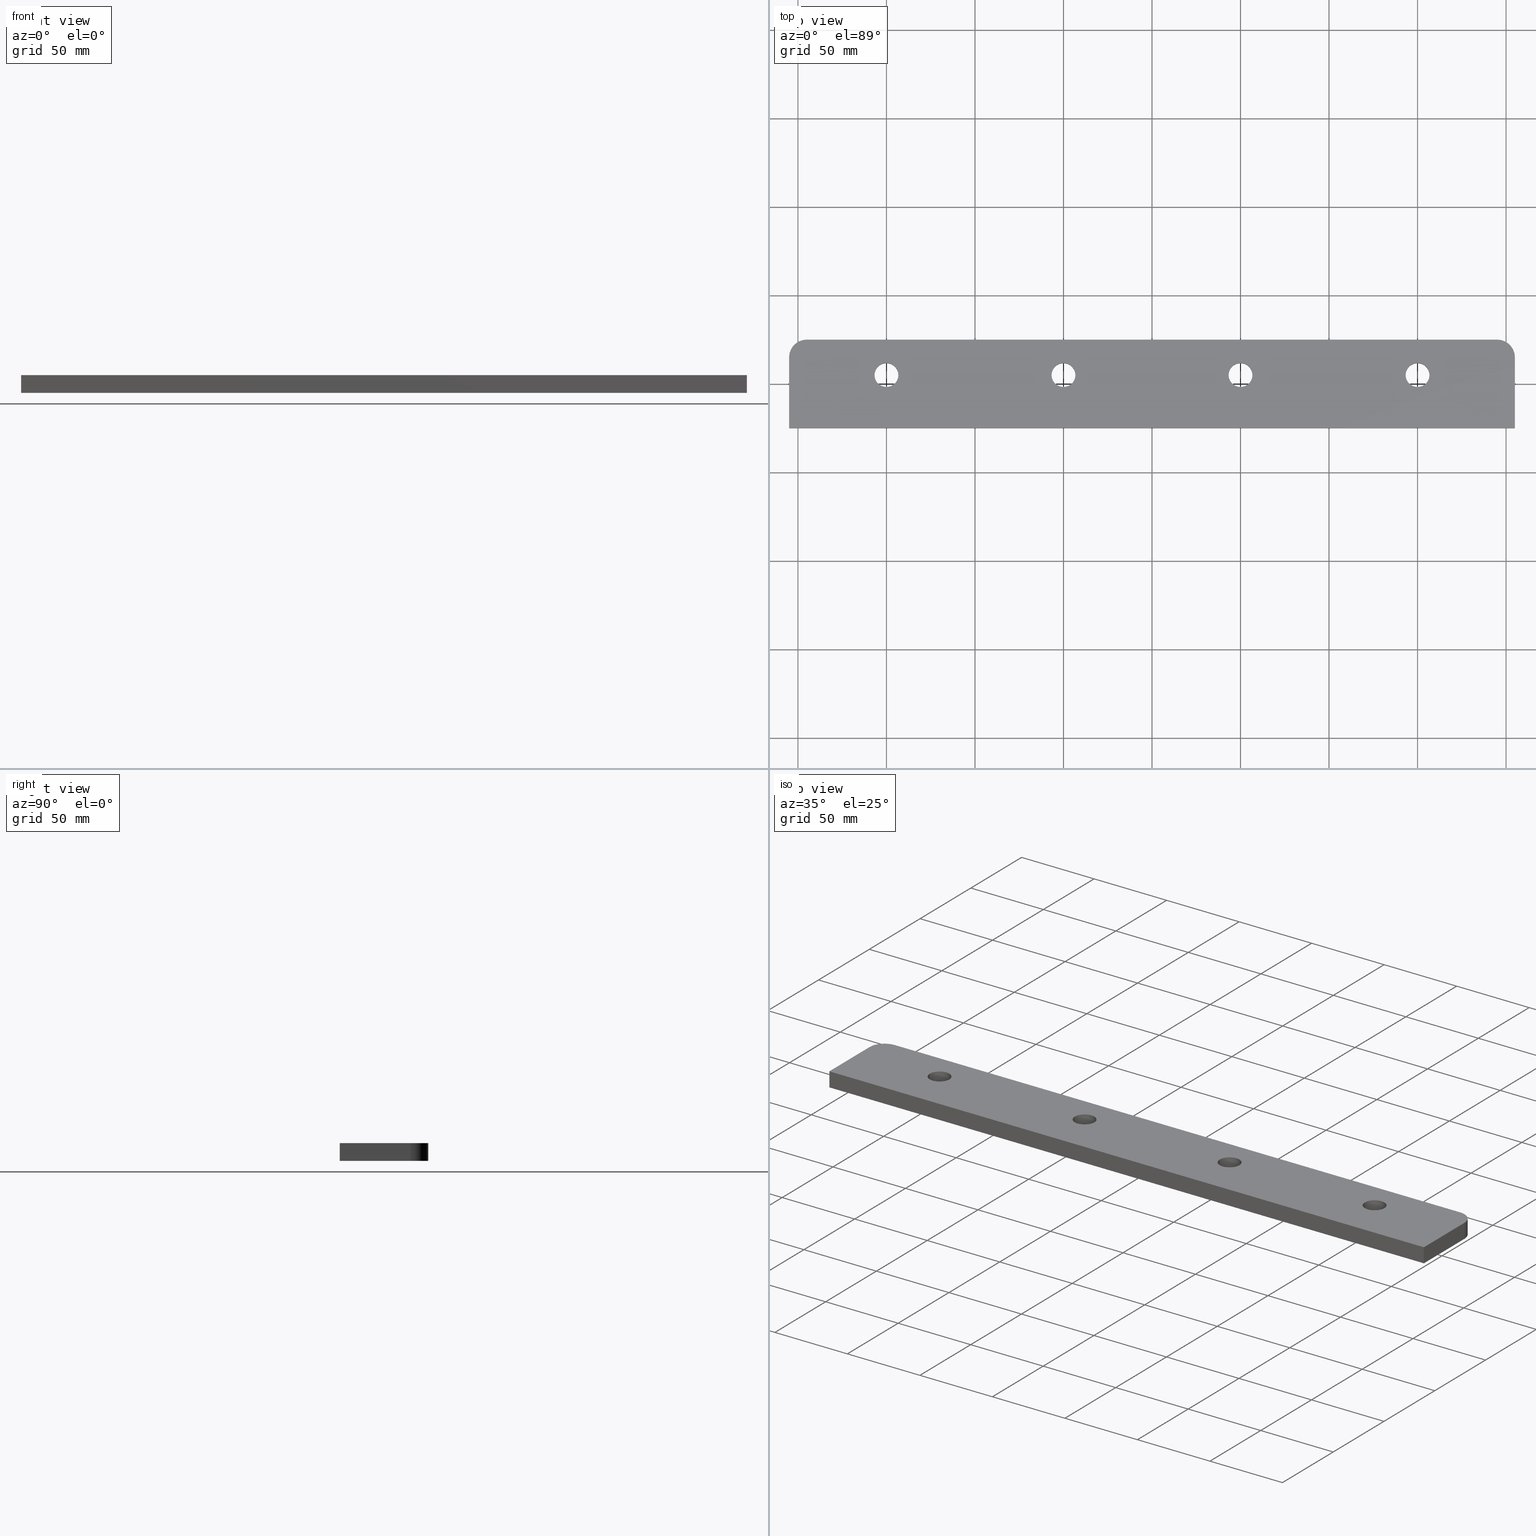
[diagram: canonical four-view strip — front | top / right | iso, engineering-drawing reading convention]
A machine part, canonical four-view strip (front | top / right | iso — engineering-drawing reading convention). The complete STEP part file that produces these views, byte-faithful:
ISO-10303-21;
HEADER;
FILE_DESCRIPTION (( 'STEP AP203' ),
    '1' );
FILE_NAME ('3997-25_REV_.step',
    '2026-02-22T05:00:24',
    ( '' ),
    ( '' ),
    'SwSTEP 2.0',
    'SolidWorks 2025',
    '' );
FILE_SCHEMA (( 'CONFIG_CONTROL_DESIGN' ));
ENDSEC;

DATA;
#1 = EDGE_CURVE ( 'NONE', #190, #557, #159, .T. ) ;
#2 = ORIENTED_EDGE ( 'NONE', *, *, #81, .F. ) ;
#3 = APPROVAL_DATE_TIME ( #224, #181 ) ;
#4 = CARTESIAN_POINT ( 'NONE',  ( 143.2500000000007958, 5.000000000000039968, 2.775516593332830284E-13 ) ) ;
#5 = ORIENTED_EDGE ( 'NONE', *, *, #204, .T. ) ;
#6 = AXIS2_PLACEMENT_3D ( 'NONE', #595, #76, #591 ) ;
#7 = VECTOR ( 'NONE', #271, 1000.000000000000000 ) ;
#8 = DIRECTION ( 'NONE',  ( 1.000000000000000000, 0.000000000000000000, 0.000000000000000000 ) ) ;
#9 = ORIENTED_EDGE ( 'NONE', *, *, #77, .F. ) ;
#10 = DIRECTION ( 'NONE',  ( 1.000000000000000000, 0.000000000000000000, 0.000000000000000000 ) ) ;
#11 = EDGE_CURVE ( 'NONE', #551, #434, #263, .T. ) ;
#12 = CARTESIAN_POINT ( 'NONE',  ( 50.00000000000027001, 5.000000000000056843, -4.096823006130383670E-18 ) ) ;
#13 = ORIENTED_EDGE ( 'NONE', *, *, #574, .T. ) ;
#14 = VECTOR ( 'NONE', #88, 1000.000000000000000 ) ;
#15 = LINE ( 'NONE', #384, #361 ) ;
#16 = VECTOR ( 'NONE', #152, 1000.000000000000000 ) ;
#17 = ORIENTED_EDGE ( 'NONE', *, *, #297, .F. ) ;
#18 = CARTESIAN_POINT ( 'NONE',  ( 205.0000000000022453, -25.00000000000000000, 2.220650890400619679E-13 ) ) ;
#19 = ORIENTED_EDGE ( 'NONE', *, *, #1, .F. ) ;
#20 = CARTESIAN_POINT ( 'NONE',  ( 56.75000000000026290, 5.000000000000056843, -4.096823006130383670E-18 ) ) ;
#21 = CARTESIAN_POINT ( 'NONE',  ( -149.9999999999999147, 5.000000000000039080, 5.550705440825169506E-14 ) ) ;
#22 = AXIS2_PLACEMENT_3D ( 'NONE', #149, #97, #10 ) ;
#23 = ORIENTED_EDGE ( 'NONE', *, *, #519, .T. ) ;
#24 = PERSON_AND_ORGANIZATION ( #552, #227 ) ;
#25 = CARTESIAN_POINT ( 'NONE',  ( -156.7499999999996874, 5.000000000000039968, -10.00000000000006395 ) ) ;
#26 = ADVANCED_FACE ( 'NONE', ( #442 ), #439, .F. ) ;
#27 = FACE_BOUND ( 'NONE', #319, .T. ) ;
#28 = DIRECTION ( 'NONE',  ( 1.540961891649139084E-35, -4.342972024593210827E-32, 1.000000000000000000 ) ) ;
#29 = CARTESIAN_POINT ( 'NONE',  ( 0.000000000000000000, 0.000000000000000000, -10.00000000000012079 ) ) ;
#30 = CARTESIAN_POINT ( 'NONE',  ( 156.7500000000007958, 5.000000000000039080, 2.775516593332830284E-13 ) ) ;
#31 = CARTESIAN_POINT ( 'NONE',  ( 0.000000000000000000, 0.000000000000000000, 0.000000000000000000 ) ) ;
#32 = FACE_BOUND ( 'NONE', #503, .T. ) ;
#33 = AXIS2_PLACEMENT_3D ( 'NONE', #596, #412, #93 ) ;
#34 = CARTESIAN_POINT ( 'NONE',  ( 0.000000000000000000, 0.000000000000000000, 0.000000000000000000 ) ) ;
#35 = APPROVAL_PERSON_ORGANIZATION ( #416, #181, #36 ) ;
#36 = APPROVAL_ROLE ( '' ) ;
#37 = ADVANCED_FACE ( 'NONE', ( #355, #542, #448, #27, #155 ), #484, .F. ) ;
#38 = ORIENTED_EDGE ( 'NONE', *, *, #460, .F. ) ;
#39 = DIRECTION ( 'NONE',  ( 1.540961891649139084E-35, -4.342972024593210827E-32, 1.000000000000000000 ) ) ;
#40 = ORIENTED_EDGE ( 'NONE', *, *, #11, .F. ) ;
#41 = LINE ( 'NONE', #94, #284 ) ;
#42 = AXIS2_PLACEMENT_3D ( 'NONE', #401, #28, #254 ) ;
#43 = ORIENTED_EDGE ( 'NONE', *, *, #558, .T. ) ;
#44 = ADVANCED_FACE ( 'NONE', ( #111 ), #344, .F. ) ;
#45 = CARTESIAN_POINT ( 'NONE',  ( -49.99999999999982236, 5.000000000000039080, 5.550705440825169506E-14 ) ) ;
#46 = CC_DESIGN_PERSON_AND_ORGANIZATION_ASSIGNMENT ( #24, #353, ( #565 ) ) ;
#47 = ORIENTED_EDGE ( 'NONE', *, *, #297, .T. ) ;
#48 = DIRECTION ( 'NONE',  ( 1.540961891649139084E-35, -4.342972024593210827E-32, 1.000000000000000000 ) ) ;
#49 = PRODUCT_DEFINITION_SHAPE ( 'NONE', 'NONE',  #539 ) ;
#50 = CARTESIAN_POINT ( 'NONE',  ( -149.9999999999996874, 5.000000000000039080, -10.00000000000006395 ) ) ;
#51 = EDGE_LOOP ( 'NONE', ( #346, #549, #516, #581 ) ) ;
#52 = CIRCLE ( 'NONE', #156, 6.750000000000006217 ) ;
#53 = VECTOR ( 'NONE', #109, 1000.000000000000000 ) ;
#54 = CC_DESIGN_PERSON_AND_ORGANIZATION_ASSIGNMENT ( #555, #272, ( #274 ) ) ;
#55 = DIRECTION ( 'NONE',  ( -1.540961891649139084E-35, 4.342972024593210827E-32, -1.000000000000000000 ) ) ;
#56 = ORIENTED_EDGE ( 'NONE', *, *, #95, .F. ) ;
#57 = DIRECTION ( 'NONE',  ( 1.540961891649139084E-35, -4.342972024593210827E-32, 1.000000000000000000 ) ) ;
#58 = ORIENTED_EDGE ( 'NONE', *, *, #142, .F. ) ;
#59 = LINE ( 'NONE', #425, #53 ) ;
#60 = EDGE_LOOP ( 'NONE', ( #599, #525 ) ) ;
#61 = DIRECTION ( 'NONE',  ( 1.540961891649139084E-35, -4.342972024593210827E-32, 1.000000000000000000 ) ) ;
#62 = AXIS2_PLACEMENT_3D ( 'NONE', #515, #115, #446 ) ;
#63 = ORIENTED_EDGE ( 'NONE', *, *, #500, .T. ) ;
#64 = ORIENTED_EDGE ( 'NONE', *, *, #460, .T. ) ;
#65 = CYLINDRICAL_SURFACE ( 'NONE', #536, 6.750000000000006217 ) ;
#66 = CC_DESIGN_PERSON_AND_ORGANIZATION_ASSIGNMENT ( #363, #177, ( #476 ) ) ;
#67 = DIRECTION ( 'NONE',  ( 1.540961891649139084E-35, -4.342972024593210827E-32, 1.000000000000000000 ) ) ;
#68 = CIRCLE ( 'NONE', #408, 6.749999999999978684 ) ;
#69 = CYLINDRICAL_SURFACE ( 'NONE', #495, 10.00000000000000888 ) ;
#70 = ORIENTED_EDGE ( 'NONE', *, *, #472, .T. ) ;
#71 = CARTESIAN_POINT ( 'NONE',  ( -204.9999999999996305, -25.00000000000000000, 3.885985427338354237E-13 ) ) ;
#72 = EDGE_LOOP ( 'NONE', ( #17, #144, #105, #576 ) ) ;
#73 = DIRECTION ( 'NONE',  ( 0.000000000000000000, 0.000000000000000000, 1.000000000000000000 ) ) ;
#74 = DIRECTION ( 'NONE',  ( -1.540961891649139084E-35, 4.342972024593210827E-32, -1.000000000000000000 ) ) ;
#75 = ORIENTED_EDGE ( 'NONE', *, *, #286, .T. ) ;
#76 = DIRECTION ( 'NONE',  ( -1.540961891649139084E-35, 4.342972024593210827E-32, -1.000000000000000000 ) ) ;
#77 = EDGE_CURVE ( 'NONE', #209, #432, #250, .T. ) ;
#78 = AXIS2_PLACEMENT_3D ( 'NONE', #309, #404, #493 ) ;
#79 = VECTOR ( 'NONE', #535, 1000.000000000000000 ) ;
#80 = EDGE_LOOP ( 'NONE', ( #571, #583, #228, #75 ) ) ;
#81 = EDGE_CURVE ( 'NONE', #557, #233, #341, .T. ) ;
#82 = CARTESIAN_POINT ( 'NONE',  ( -204.9999999999996305, -25.00000000000000000, 3.885985427338354237E-13 ) ) ;
#83 = DATE_AND_TIME ( #544, #218 ) ;
#84 = CARTESIAN_POINT ( 'NONE',  ( -204.9999999999996305, 25.00000000000001066, 3.885575745037741546E-13 ) ) ;
#85 = CARTESIAN_POINT ( 'NONE',  ( 50.00000000000027001, 5.000000000000056843, -10.00000000000000888 ) ) ;
#86 = PERSON_AND_ORGANIZATION ( #552, #227 ) ;
#87 = ADVANCED_FACE ( 'NONE', ( #481 ), #65, .F. ) ;
#88 = DIRECTION ( 'NONE',  ( 1.540961891649139084E-35, -4.342972024593210827E-32, 1.000000000000000000 ) ) ;
#89 = VECTOR ( 'NONE', #39, 1000.000000000000000 ) ;
#90 = CIRCLE ( 'NONE', #548, 10.00000000000000888 ) ;
#91 = ORIENTED_EDGE ( 'NONE', *, *, #590, .T. ) ;
#92 = DIRECTION ( 'NONE',  ( 1.000000000000000000, 0.000000000000000000, 0.000000000000000000 ) ) ;
#93 = DIRECTION ( 'NONE',  ( 1.000000000000000000, 0.000000000000000000, 0.000000000000000000 ) ) ;
#94 = CARTESIAN_POINT ( 'NONE',  ( -204.9999999999996305, 25.00000000000001066, -10.00000000000000888 ) ) ;
#95 = EDGE_CURVE ( 'NONE', #432, #338, #399, .T. ) ;
#96 = VERTEX_POINT ( 'NONE', #449 ) ;
#97 = DIRECTION ( 'NONE',  ( 1.540961891649139084E-35, -4.342972024593210827E-32, 1.000000000000000000 ) ) ;
#98 = EDGE_CURVE ( 'NONE', #551, #469, #52, .T. ) ;
#99 = EDGE_LOOP ( 'NONE', ( #366, #5, #150, #340 ) ) ;
#100 = CIRCLE ( 'NONE', #167, 6.749999999999992006 ) ;
#101 = AXIS2_PLACEMENT_3D ( 'NONE', #335, #239, #517 ) ;
#102 = CARTESIAN_POINT ( 'NONE',  ( 205.0000000000017337, -25.00000000000000000, -9.999999999999925393 ) ) ;
#103 = ORIENTED_EDGE ( 'NONE', *, *, #286, .F. ) ;
#104 = DIRECTION ( 'NONE',  ( 1.540961891649139084E-35, -4.342972024593210827E-32, 1.000000000000000000 ) ) ;
#105 = ORIENTED_EDGE ( 'NONE', *, *, #1, .T. ) ;
#106 = CARTESIAN_POINT ( 'NONE',  ( -143.2499999999999147, 5.000000000000039080, 5.550705440825169506E-14 ) ) ;
#107 = ORIENTED_EDGE ( 'NONE', *, *, #232, .T. ) ;
#108 = AXIS2_PLACEMENT_3D ( 'NONE', #537, #203, #113 ) ;
#109 = DIRECTION ( 'NONE',  ( -1.540961891649139084E-35, 4.342972024593210827E-32, -1.000000000000000000 ) ) ;
#110 = CC_DESIGN_SECURITY_CLASSIFICATION ( #476, ( #274 ) ) ;
#111 = FACE_OUTER_BOUND ( 'NONE', #72, .T. ) ;
#112 =( NAMED_UNIT ( * ) SI_UNIT ( $, .STERADIAN. ) SOLID_ANGLE_UNIT ( ) );
#113 = DIRECTION ( 'NONE',  ( 1.000000000000000000, 0.000000000000000000, 0.000000000000000000 ) ) ;
#114 = EDGE_CURVE ( 'NONE', #376, #593, #417, .T. ) ;
#115 = DIRECTION ( 'NONE',  ( 1.540961891649139084E-35, -4.342972024593210827E-32, 1.000000000000000000 ) ) ;
#116 = LINE ( 'NONE', #301, #313 ) ;
#117 = ORIENTED_EDGE ( 'NONE', *, *, #487, .T. ) ;
#118 = VECTOR ( 'NONE', #533, 1000.000000000000000 ) ;
#119 =( GEOMETRIC_REPRESENTATION_CONTEXT ( 3 ) GLOBAL_UNCERTAINTY_ASSIGNED_CONTEXT ( ( #122 ) ) GLOBAL_UNIT_ASSIGNED_CONTEXT ( ( #443, #160, #112 ) ) REPRESENTATION_CONTEXT ( 'NONE', 'WORKASPACE' ) );
#120 = DIRECTION ( 'NONE',  ( 1.000000000000000000, 0.000000000000000000, 0.000000000000000000 ) ) ;
#121 = ORIENTED_EDGE ( 'NONE', *, *, #316, .T. ) ;
#122 = UNCERTAINTY_MEASURE_WITH_UNIT (LENGTH_MEASURE( 1.000000000000000082E-05 ), #443, 'distance_accuracy_value', 'NONE');
#123 = VERTEX_POINT ( 'NONE', #372 ) ;
#124 = DIRECTION ( 'NONE',  ( 1.540961891649139084E-35, -4.342972024593210827E-32, 1.000000000000000000 ) ) ;
#125 = PERSON_AND_ORGANIZATION ( #552, #227 ) ;
#126 = LINE ( 'NONE', #82, #7 ) ;
#127 = AXIS2_PLACEMENT_3D ( 'NONE', #212, #298, #479 ) ;
#128 = AXIS2_PLACEMENT_3D ( 'NONE', #12, #104, #191 ) ;
#129 = ORIENTED_EDGE ( 'NONE', *, *, #170, .T. ) ;
#130 = APPROVAL_DATE_TIME ( #270, #248 ) ;
#131 = DIRECTION ( 'NONE',  ( 1.540961891649139084E-35, -4.342972024593210827E-32, 1.000000000000000000 ) ) ;
#132 = PRODUCT_RELATED_PRODUCT_CATEGORY ( 'detail', '', ( #565 ) ) ;
#133 = DATE_TIME_ROLE ( 'creation_date' ) ;
#134 = CARTESIAN_POINT ( 'NONE',  ( 143.2500000000008242, 5.000000000000039968, 2.775516593332830284E-13 ) ) ;
#135 = CARTESIAN_POINT ( 'NONE',  ( -49.99999999999960210, 5.000000000000039080, -9.999999999999786837 ) ) ;
#136 = DIRECTION ( 'NONE',  ( 1.000000000000000000, 0.000000000000000000, 0.000000000000000000 ) ) ;
#137 = VECTOR ( 'NONE', #349, 1000.000000000000000 ) ;
#138 = AXIS2_PLACEMENT_3D ( 'NONE', #193, #575, #197 ) ;
#139 = DIRECTION ( 'NONE',  ( 1.540961891649139084E-35, -4.342972024593210827E-32, 1.000000000000000000 ) ) ;
#140 = EDGE_CURVE ( 'NONE', #406, #434, #464, .T. ) ;
#141 = ORIENTED_EDGE ( 'NONE', *, *, #480, .F. ) ;
#142 = EDGE_CURVE ( 'NONE', #200, #334, #559, .T. ) ;
#143 = PLANE ( 'NONE',  #325 ) ;
#144 = ORIENTED_EDGE ( 'NONE', *, *, #257, .F. ) ;
#145 = FACE_OUTER_BOUND ( 'NONE', #330, .T. ) ;
#146 = EDGE_LOOP ( 'NONE', ( #554, #242, #192, #153 ) ) ;
#147 = AXIS2_PLACEMENT_3D ( 'NONE', #21, #531, #302 ) ;
#148 = AXIS2_PLACEMENT_3D ( 'NONE', #300, #67, #588 ) ;
#149 = CARTESIAN_POINT ( 'NONE',  ( -49.99999999999982236, 5.000000000000039080, 5.550705440825169506E-14 ) ) ;
#150 = ORIENTED_EDGE ( 'NONE', *, *, #365, .T. ) ;
#151 = EDGE_CURVE ( 'NONE', #398, #281, #354, .T. ) ;
#152 = DIRECTION ( 'NONE',  ( 1.848892746611746419E-32, 1.000000000000000000, -4.930380657631323784E-32 ) ) ;
#153 = ORIENTED_EDGE ( 'NONE', *, *, #500, .F. ) ;
#154 = CARTESIAN_POINT ( 'NONE',  ( -204.9999999999996305, -25.00000000000000000, 3.885985427338354237E-13 ) ) ;
#155 = FACE_OUTER_BOUND ( 'NONE', #165, .T. ) ;
#156 = AXIS2_PLACEMENT_3D ( 'NONE', #135, #510, #92 ) ;
#157 = LOCAL_TIME ( 16, 0, 24.00000000000000000, #163 ) ;
#158 = ADVANCED_FACE ( 'NONE', ( #494 ), #589, .T. ) ;
#159 = LINE ( 'NONE', #30, #568 ) ;
#160 =( NAMED_UNIT ( * ) PLANE_ANGLE_UNIT ( ) SI_UNIT ( $, .RADIAN. ) );
#161 = CARTESIAN_POINT ( 'NONE',  ( -204.9999999999996305, -25.00000000000000000, -10.00000000000000888 ) ) ;
#162 = DIRECTION ( 'NONE',  ( 1.540961891649139084E-35, -4.342972024593210827E-32, 1.000000000000000000 ) ) ;
#163 = COORDINATED_UNIVERSAL_TIME_OFFSET ( 10, 0, .AHEAD. ) ;
#164 = FACE_OUTER_BOUND ( 'NONE', #146, .T. ) ;
#165 = EDGE_LOOP ( 'NONE', ( #428, #43, #520, #499, #496, #117 ) ) ;
#166 = APPLICATION_PROTOCOL_DEFINITION ( 'international standard', 'config_control_design', 1994, #350 ) ;
#167 = AXIS2_PLACEMENT_3D ( 'NONE', #592, #513, #186 ) ;
#168 = CC_DESIGN_APPROVAL ( #181, ( #274 ) ) ;
#169 = ORIENTED_EDGE ( 'NONE', *, *, #77, .T. ) ;
#170 = EDGE_CURVE ( 'NONE', #398, #567, #310, .T. ) ;
#171 = LINE ( 'NONE', #578, #497 ) ;
#172 = COORDINATED_UNIVERSAL_TIME_OFFSET ( 10, 0, .AHEAD. ) ;
#173 = ADVANCED_BREP_SHAPE_REPRESENTATION ( '3997-25_REV_', ( #290, #518 ), #119 ) ;
#174 = DIRECTION ( 'NONE',  ( 1.000000000000000000, 0.000000000000000000, 0.000000000000000000 ) ) ;
#175 = DIRECTION ( 'NONE',  ( -1.848892746611746419E-32, -1.000000000000000000, 4.930380657631323784E-32 ) ) ;
#176 = EDGE_LOOP ( 'NONE', ( #13, #327 ) ) ;
#177 = PERSON_AND_ORGANIZATION_ROLE ( 'classification_officer' ) ;
#178 = DIRECTION ( 'NONE',  ( 1.000000000000000000, 0.000000000000000000, 0.000000000000000000 ) ) ;
#179 = CIRCLE ( 'NONE', #597, 6.750000000000006217 ) ;
#180 = CIRCLE ( 'NONE', #148, 10.00000000000000888 ) ;
#181 = APPROVAL ( #508, 'UNSPECIFIED' ) ;
#182 = CALENDAR_DATE ( 2026, 22, 2 ) ;
#183 = DIRECTION ( 'NONE',  ( 1.000000000000000000, 0.000000000000000000, 0.000000000000000000 ) ) ;
#184 = DIRECTION ( 'NONE',  ( 1.540961891649139084E-35, -4.342972024593210827E-32, 1.000000000000000000 ) ) ;
#185 = CARTESIAN_POINT ( 'NONE',  ( 205.0000000000017337, -25.00000000000000000, -9.999999999999925393 ) ) ;
#186 = DIRECTION ( 'NONE',  ( 1.000000000000000000, 0.000000000000000000, 0.000000000000000000 ) ) ;
#187 = VECTOR ( 'NONE', #534, 1000.000000000000000 ) ;
#188 = ORIENTED_EDGE ( 'NONE', *, *, #472, .F. ) ;
#189 = CARTESIAN_POINT ( 'NONE',  ( -204.9999999999996305, 15.00000000000000355, 3.885657681497864185E-13 ) ) ;
#190 = VERTEX_POINT ( 'NONE', #266 ) ;
#191 = DIRECTION ( 'NONE',  ( 1.000000000000000000, 0.000000000000000000, 0.000000000000000000 ) ) ;
#192 = ORIENTED_EDGE ( 'NONE', *, *, #558, .F. ) ;
#193 = CARTESIAN_POINT ( 'NONE',  ( 50.00000000000027001, 5.000000000000056843, -10.00000000000000888 ) ) ;
#194 = ORIENTED_EDGE ( 'NONE', *, *, #303, .T. ) ;
#195 = AXIS2_PLACEMENT_3D ( 'NONE', #461, #364, #280 ) ;
#196 = VECTOR ( 'NONE', #241, 1000.000000000000000 ) ;
#197 = DIRECTION ( 'NONE',  ( 1.000000000000000000, 0.000000000000000000, 0.000000000000000000 ) ) ;
#198 = ORIENTED_EDGE ( 'NONE', *, *, #268, .F. ) ;
#199 = DIRECTION ( 'NONE',  ( 1.540961891649139084E-35, -4.342972024593210827E-32, 1.000000000000000000 ) ) ;
#200 = VERTEX_POINT ( 'NONE', #541 ) ;
#201 = ADVANCED_FACE ( 'NONE', ( #211 ), #220, .T. ) ;
#202 = CARTESIAN_POINT ( 'NONE',  ( -56.74999999999960210, 5.000000000000039968, -9.999999999999786837 ) ) ;
#203 = DIRECTION ( 'NONE',  ( 1.540961891649139084E-35, -4.342972024593210827E-32, 1.000000000000000000 ) ) ;
#204 = EDGE_CURVE ( 'NONE', #376, #291, #116, .T. ) ;
#205 = AXIS2_PLACEMENT_3D ( 'NONE', #208, #124, #397 ) ;
#206 = CIRCLE ( 'NONE', #62, 6.749999999999978684 ) ;
#207 = CALENDAR_DATE ( 2026, 22, 2 ) ;
#208 = CARTESIAN_POINT ( 'NONE',  ( -194.9999999999998295, 15.00000000000000355, -10.00000000000012079 ) ) ;
#209 = VERTEX_POINT ( 'NONE', #25 ) ;
#210 = MECHANICAL_CONTEXT ( 'NONE', #350, 'mechanical' ) ;
#211 = FACE_OUTER_BOUND ( 'NONE', #99, .T. ) ;
#212 = CARTESIAN_POINT ( 'NONE',  ( 150.0000000000007958, 5.000000000000039080, 2.775516593332830284E-13 ) ) ;
#213 = DIRECTION ( 'NONE',  ( -1.000000000000000000, 0.000000000000000000, 0.000000000000000000 ) ) ;
#214 = ADVANCED_FACE ( 'NONE', ( #164 ), #69, .T. ) ;
#215 = ORIENTED_EDGE ( 'NONE', *, *, #437, .T. ) ;
#216 = CARTESIAN_POINT ( 'NONE',  ( 156.7500000000007674, 5.000000000000039080, 2.775516593332830284E-13 ) ) ;
#217 = AXIS2_PLACEMENT_3D ( 'NONE', #34, #387, #529 ) ;
#218 = LOCAL_TIME ( 16, 0, 24.00000000000000000, #492 ) ;
#219 = CALENDAR_DATE ( 2026, 22, 2 ) ;
#220 = PLANE ( 'NONE',  #579 ) ;
#221 = ADVANCED_FACE ( 'NONE', ( #255, #32, #441, #305, #259 ), #444, .T. ) ;
#222 = CYLINDRICAL_SURFACE ( 'NONE', #264, 6.749999999999999112 ) ;
#223 = EDGE_LOOP ( 'NONE', ( #293, #240, #91, #194 ) ) ;
#224 = DATE_AND_TIME ( #219, #333 ) ;
#225 = DIRECTION ( 'NONE',  ( 1.000000000000000000, 0.000000000000000000, 0.000000000000000000 ) ) ;
#226 = CARTESIAN_POINT ( 'NONE',  ( 205.0000000000022453, 15.00000000000001066, 2.220323144560129122E-13 ) ) ;
#227 = ORGANIZATION ( 'UNSPECIFIED', 'UNSPECIFIED', '' ) ;
#228 = ORIENTED_EDGE ( 'NONE', *, *, #151, .T. ) ;
#229 = DIRECTION ( 'NONE',  ( 1.540961891649139084E-35, -4.342972024593210827E-32, 1.000000000000000000 ) ) ;
#230 = ORIENTED_EDGE ( 'NONE', *, *, #260, .F. ) ;
#231 = LINE ( 'NONE', #4, #14 ) ;
#232 = EDGE_CURVE ( 'NONE', #96, #507, #360, .T. ) ;
#233 = VERTEX_POINT ( 'NONE', #134 ) ;
#234 = CARTESIAN_POINT ( 'NONE',  ( -204.9999999999996305, -25.00000000000000000, -10.00000000000000888 ) ) ;
#235 = CLOSED_SHELL ( 'NONE', ( #357, #411, #87, #26, #430, #462, #528, #201, #221, #37, #470, #44, #276, #311, #214, #158 ) ) ;
#236 = CIRCLE ( 'NONE', #33, 6.750000000000006217 ) ;
#237 = CC_DESIGN_APPROVAL ( #248, ( #476 ) ) ;
#238 = ORIENTED_EDGE ( 'NONE', *, *, #140, .T. ) ;
#239 = DIRECTION ( 'NONE',  ( 1.540961891649139084E-35, -4.342972024593210827E-32, 1.000000000000000000 ) ) ;
#240 = ORIENTED_EDGE ( 'NONE', *, *, #316, .F. ) ;
#241 = DIRECTION ( 'NONE',  ( 1.848892746611746419E-32, 1.000000000000000000, -4.930380657631323784E-32 ) ) ;
#242 = ORIENTED_EDGE ( 'NONE', *, *, #204, .F. ) ;
#243 = CARTESIAN_POINT ( 'NONE',  ( -156.7499999999998863, 5.000000000000039968, 5.550705440825169506E-14 ) ) ;
#244 = ORIENTED_EDGE ( 'NONE', *, *, #590, .F. ) ;
#245 = AXIS2_PLACEMENT_3D ( 'NONE', #362, #229, #183 ) ;
#246 = DIRECTION ( 'NONE',  ( -1.540961891649139084E-35, 4.342972024593210827E-32, -1.000000000000000000 ) ) ;
#247 = ORIENTED_EDGE ( 'NONE', *, *, #140, .F. ) ;
#248 = APPROVAL ( #403, 'UNSPECIFIED' ) ;
#249 = PLANE ( 'NONE',  #265 ) ;
#250 = LINE ( 'NONE', #396, #352 ) ;
#251 = APPLICATION_PROTOCOL_DEFINITION ( 'international standard', 'config_control_design', 1994, #506 ) ;
#252 = EDGE_LOOP ( 'NONE', ( #523, #414 ) ) ;
#253 = AXIS2_PLACEMENT_3D ( 'NONE', #50, #315, #498 ) ;
#254 = DIRECTION ( 'NONE',  ( 1.000000000000000000, 0.000000000000000000, 0.000000000000000000 ) ) ;
#255 = FACE_BOUND ( 'NONE', #176, .T. ) ;
#256 = ORIENTED_EDGE ( 'NONE', *, *, #378, .F. ) ;
#257 = EDGE_CURVE ( 'NONE', #190, #123, #236, .T. ) ;
#258 = LINE ( 'NONE', #20, #79 ) ;
#259 = FACE_OUTER_BOUND ( 'NONE', #394, .T. ) ;
#260 = EDGE_CURVE ( 'NONE', #593, #458, #475, .T. ) ;
#261 = ORIENTED_EDGE ( 'NONE', *, *, #232, .F. ) ;
#262 = DIRECTION ( 'NONE',  ( 1.000000000000000000, 0.000000000000000000, 0.000000000000000000 ) ) ;
#263 = LINE ( 'NONE', #491, #187 ) ;
#264 = AXIS2_PLACEMENT_3D ( 'NONE', #418, #131, #546 ) ;
#265 = AXIS2_PLACEMENT_3D ( 'NONE', #482, #307, #343 ) ;
#266 = CARTESIAN_POINT ( 'NONE',  ( 156.7500000000007958, 5.000000000000039080, -9.999999999999896971 ) ) ;
#267 = VERTEX_POINT ( 'NONE', #453 ) ;
#268 = EDGE_CURVE ( 'NONE', #334, #593, #369, .T. ) ;
#269 = LINE ( 'NONE', #185, #89 ) ;
#270 = DATE_AND_TIME ( #182, #375 ) ;
#271 = DIRECTION ( 'NONE',  ( -1.848892746611746419E-32, -1.000000000000000000, 4.930380657631323784E-32 ) ) ;
#272 = PERSON_AND_ORGANIZATION_ROLE ( 'design_supplier' ) ;
#273 = LINE ( 'NONE', #407, #332 ) ;
#274 = PRODUCT_DEFINITION_FORMATION_WITH_SPECIFIED_SOURCE ( 'ANY', '', #565, .NOT_KNOWN. ) ;
#275 = EDGE_LOOP ( 'NONE', ( #2, #381 ) ) ;
#276 = ADVANCED_FACE ( 'NONE', ( #459 ), #553, .F. ) ;
#277 = DIRECTION ( 'NONE',  ( 1.540961891649139084E-35, -4.342972024593210827E-32, 1.000000000000000000 ) ) ;
#278 = DIRECTION ( 'NONE',  ( 1.540961891649139084E-35, -4.342972024593210827E-32, 1.000000000000000000 ) ) ;
#279 = VERTEX_POINT ( 'NONE', #405 ) ;
#280 = DIRECTION ( 'NONE',  ( -1.000000000000000000, 0.000000000000000000, 0.000000000000000000 ) ) ;
#281 = VERTEX_POINT ( 'NONE', #603 ) ;
#282 = PLANE ( 'NONE',  #342 ) ;
#283 = VECTOR ( 'NONE', #48, 1000.000000000000000 ) ;
#284 = VECTOR ( 'NONE', #600, 1000.000000000000000 ) ;
#285 = ORIENTED_EDGE ( 'NONE', *, *, #402, .F. ) ;
#286 = EDGE_CURVE ( 'NONE', #281, #423, #269, .T. ) ;
#287 = DIRECTION ( 'NONE',  ( 1.000000000000000000, 2.773339119917616344E-32, -1.540961891649139084E-35 ) ) ;
#288 = EDGE_LOOP ( 'NONE', ( #312, #47, #23, #19 ) ) ;
#289 = DIRECTION ( 'NONE',  ( 1.000000000000000000, 2.773339119917615797E-32, 1.540961891649054357E-35 ) ) ;
#290 = MANIFOLD_SOLID_BREP ( 'Fillet1', #235 ) ;
#291 = VERTEX_POINT ( 'NONE', #502 ) ;
#292 = DIRECTION ( 'NONE',  ( 1.000000000000000000, 0.000000000000000000, 0.000000000000000000 ) ) ;
#293 = ORIENTED_EDGE ( 'NONE', *, *, #547, .F. ) ;
#294 = AXIS2_PLACEMENT_3D ( 'NONE', #368, #277, #225 ) ;
#295 = APPROVAL_PERSON_ORGANIZATION ( #125, #248, #320 ) ;
#296 = CARTESIAN_POINT ( 'NONE',  ( -56.74999999999980815, 5.000000000000039968, 5.550705440825169506E-14 ) ) ;
#297 = EDGE_CURVE ( 'NONE', #123, #233, #231, .T. ) ;
#298 = DIRECTION ( 'NONE',  ( 1.540961891649139084E-35, -4.342972024593210827E-32, 1.000000000000000000 ) ) ;
#299 = EDGE_LOOP ( 'NONE', ( #40, #467, #463, #238 ) ) ;
#300 = CARTESIAN_POINT ( 'NONE',  ( 195.0000000000008527, 15.00000000000001066, -1.229046901844045482E-17 ) ) ;
#301 = CARTESIAN_POINT ( 'NONE',  ( 195.0000000000012790, 25.00000000000000355, -10.00000000000006395 ) ) ;
#302 = DIRECTION ( 'NONE',  ( 1.000000000000000000, 0.000000000000000000, 0.000000000000000000 ) ) ;
#303 = EDGE_CURVE ( 'NONE', #507, #96, #100, .T. ) ;
#304 = VECTOR ( 'NONE', #57, 1000.000000000000000 ) ;
#305 = FACE_BOUND ( 'NONE', #252, .T. ) ;
#306 = ORIENTED_EDGE ( 'NONE', *, *, #151, .F. ) ;
#307 = DIRECTION ( 'NONE',  ( -1.000000000000000000, -2.773339119917616344E-32, 1.540961891649139084E-35 ) ) ;
#308 = ORIENTED_EDGE ( 'NONE', *, *, #329, .F. ) ;
#309 = CARTESIAN_POINT ( 'NONE',  ( -49.99999999999982236, 5.000000000000039080, 5.550705440825169506E-14 ) ) ;
#310 = LINE ( 'NONE', #161, #137 ) ;
#311 = ADVANCED_FACE ( 'NONE', ( #505 ), #222, .F. ) ;
#312 = ORIENTED_EDGE ( 'NONE', *, *, #393, .F. ) ;
#313 = VECTOR ( 'NONE', #74, 1000.000000000000000 ) ;
#314 = VECTOR ( 'NONE', #289, 1000.000000000000000 ) ;
#315 = DIRECTION ( 'NONE',  ( 1.540961891649139084E-35, -4.342972024593210827E-32, 1.000000000000000000 ) ) ;
#316 = EDGE_CURVE ( 'NONE', #573, #514, #179, .T. ) ;
#317 = SHAPE_DEFINITION_REPRESENTATION ( #49, #173 ) ;
#318 = DIRECTION ( 'NONE',  ( 1.000000000000000000, 0.000000000000000000, 0.000000000000000000 ) ) ;
#319 = EDGE_LOOP ( 'NONE', ( #308, #56 ) ) ;
#320 = APPROVAL_ROLE ( '' ) ;
#321 = CARTESIAN_POINT ( 'NONE',  ( -194.9999999999998295, 25.00000000000001066, -10.00000000000012079 ) ) ;
#322 = EDGE_LOOP ( 'NONE', ( #256, #169, #383, #562 ) ) ;
#323 = EDGE_CURVE ( 'NONE', #200, #398, #273, .T. ) ;
#324 = CYLINDRICAL_SURFACE ( 'NONE', #390, 6.749999999999999112 ) ;
#325 = AXIS2_PLACEMENT_3D ( 'NONE', #380, #287, #55 ) ;
#326 = DIRECTION ( 'NONE',  ( 1.540961891649139084E-35, -4.342972024593210827E-32, 1.000000000000000000 ) ) ;
#327 = ORIENTED_EDGE ( 'NONE', *, *, #98, .T. ) ;
#328 = CARTESIAN_POINT ( 'NONE',  ( 43.25000000000027001, 5.000000000000057732, -10.00000000000000888 ) ) ;
#329 = EDGE_CURVE ( 'NONE', #338, #432, #68, .T. ) ;
#330 = EDGE_LOOP ( 'NONE', ( #70, #63, #141, #103 ) ) ;
#331 = CARTESIAN_POINT ( 'NONE',  ( -43.24999999999959499, 5.000000000000039080, -9.999999999999786837 ) ) ;
#332 = VECTOR ( 'NONE', #175, 1000.000000000000000 ) ;
#333 = LOCAL_TIME ( 16, 0, 24.00000000000000000, #504 ) ;
#334 = VERTEX_POINT ( 'NONE', #450 ) ;
#335 = CARTESIAN_POINT ( 'NONE',  ( -149.9999999999999147, 5.000000000000039080, 5.550705440825169506E-14 ) ) ;
#336 = VERTEX_POINT ( 'NONE', #226 ) ;
#337 = DIRECTION ( 'NONE',  ( 1.540961891649139084E-35, -4.342972024593210827E-32, 1.000000000000000000 ) ) ;
#338 = VERTEX_POINT ( 'NONE', #359 ) ;
#339 = CYLINDRICAL_SURFACE ( 'NONE', #128, 6.749999999999999112 ) ;
#340 = ORIENTED_EDGE ( 'NONE', *, *, #268, .T. ) ;
#341 = CIRCLE ( 'NONE', #108, 6.749999999999978684 ) ;
#342 = AXIS2_PLACEMENT_3D ( 'NONE', #382, #522, #246 ) ;
#343 = DIRECTION ( 'NONE',  ( 1.540961891649139084E-35, -4.342972024593210827E-32, 1.000000000000000000 ) ) ;
#344 = CYLINDRICAL_SURFACE ( 'NONE', #127, 6.750000000000006217 ) ;
#345 = PERSON_AND_ORGANIZATION_ROLE ( 'creator' ) ;
#346 = ORIENTED_EDGE ( 'NONE', *, *, #98, .F. ) ;
#347 = CC_DESIGN_DATE_AND_TIME_ASSIGNMENT ( #371, #133, ( #539 ) ) ;
#348 = CALENDAR_DATE ( 2026, 22, 2 ) ;
#349 = DIRECTION ( 'NONE',  ( 1.540961891649139084E-35, -4.342972024593210827E-32, 1.000000000000000000 ) ) ;
#350 = APPLICATION_CONTEXT ( 'configuration controlled 3d designs of mechanical parts and assemblies' ) ;
#351 = DIRECTION ( 'NONE',  ( 1.540961891649139084E-35, -4.342972024593210827E-32, 1.000000000000000000 ) ) ;
#352 = VECTOR ( 'NONE', #351, 1000.000000000000000 ) ;
#353 = PERSON_AND_ORGANIZATION_ROLE ( 'design_owner' ) ;
#354 = LINE ( 'NONE', #543, #118 ) ;
#355 = FACE_BOUND ( 'NONE', #454, .T. ) ;
#356 = CARTESIAN_POINT ( 'NONE',  ( 195.0000000000015064, 15.00000000000001066, -10.00000000000034106 ) ) ;
#357 = ADVANCED_FACE ( 'NONE', ( #373 ), #324, .F. ) ;
#358 = EDGE_CURVE ( 'NONE', #458, #567, #126, .T. ) ;
#359 = CARTESIAN_POINT ( 'NONE',  ( -143.2499999999999432, 5.000000000000039080, 5.550705440825169506E-14 ) ) ;
#360 = CIRCLE ( 'NONE', #245, 6.749999999999992006 ) ;
#361 = VECTOR ( 'NONE', #386, 1000.000000000000000 ) ;
#362 = CARTESIAN_POINT ( 'NONE',  ( 50.00000000000027001, 5.000000000000056843, -4.096823006130383670E-18 ) ) ;
#363 = PERSON_AND_ORGANIZATION ( #552, #227 ) ;
#364 = DIRECTION ( 'NONE',  ( 1.540961891649139084E-35, -4.342972024593210827E-32, 1.000000000000000000 ) ) ;
#365 = EDGE_CURVE ( 'NONE', #291, #334, #41, .T. ) ;
#366 = ORIENTED_EDGE ( 'NONE', *, *, #114, .F. ) ;
#367 = EDGE_CURVE ( 'NONE', #279, #209, #456, .T. ) ;
#368 = CARTESIAN_POINT ( 'NONE',  ( -149.9999999999999147, 5.000000000000039080, 5.550705440825169506E-14 ) ) ;
#369 = LINE ( 'NONE', #321, #283 ) ;
#370 = ORIENTED_EDGE ( 'NONE', *, *, #329, .T. ) ;
#371 = DATE_AND_TIME ( #348, #157 ) ;
#372 = CARTESIAN_POINT ( 'NONE',  ( 143.2500000000007958, 5.000000000000039968, -9.999999999999896971 ) ) ;
#373 = FACE_OUTER_BOUND ( 'NONE', #51, .T. ) ;
#374 = AXIS2_PLACEMENT_3D ( 'NONE', #511, #278, #561 ) ;
#375 = LOCAL_TIME ( 16, 0, 24.00000000000000000, #172 ) ;
#376 = VERTEX_POINT ( 'NONE', #421 ) ;
#377 = FACE_OUTER_BOUND ( 'NONE', #436, .T. ) ;
#378 = EDGE_CURVE ( 'NONE', #209, #279, #570, .T. ) ;
#379 = ORIENTED_EDGE ( 'NONE', *, *, #424, .T. ) ;
#380 = CARTESIAN_POINT ( 'NONE',  ( 205.0000000000017337, -25.00000000000000000, -9.999999999999925393 ) ) ;
#381 = ORIENTED_EDGE ( 'NONE', *, *, #519, .F. ) ;
#382 = CARTESIAN_POINT ( 'NONE',  ( -204.9999999999996305, -25.00000000000000000, -10.00000000000000888 ) ) ;
#383 = ORIENTED_EDGE ( 'NONE', *, *, #95, .T. ) ;
#384 = CARTESIAN_POINT ( 'NONE',  ( -43.24999999999982236, 5.000000000000039080, 5.550705440825169506E-14 ) ) ;
#385 = ORIENTED_EDGE ( 'NONE', *, *, #323, .F. ) ;
#386 = DIRECTION ( 'NONE',  ( 1.540961891649139084E-35, -4.342972024593210827E-32, 1.000000000000000000 ) ) ;
#387 = DIRECTION ( 'NONE',  ( 1.540961891649054357E-35, 4.342972024593211922E-32, -1.000000000000000000 ) ) ;
#388 = DIRECTION ( 'NONE',  ( -1.540961891649139084E-35, 4.342972024593210827E-32, -1.000000000000000000 ) ) ;
#389 = ORIENTED_EDGE ( 'NONE', *, *, #367, .F. ) ;
#390 = AXIS2_PLACEMENT_3D ( 'NONE', #45, #326, #318 ) ;
#391 = APPROVAL_DATE_TIME ( #489, #586 ) ;
#392 = DIRECTION ( 'NONE',  ( 1.848892746611746419E-32, 1.000000000000000000, 4.342972024593210827E-32 ) ) ;
#393 = EDGE_CURVE ( 'NONE', #123, #190, #509, .T. ) ;
#394 = EDGE_LOOP ( 'NONE', ( #473, #477, #188, #306, #385, #451 ) ) ;
#395 = PERSON_AND_ORGANIZATION ( #552, #227 ) ;
#396 = CARTESIAN_POINT ( 'NONE',  ( -156.7499999999999147, 5.000000000000039968, 5.550705440825169506E-14 ) ) ;
#397 = DIRECTION ( 'NONE',  ( 1.000000000000000000, 0.000000000000000000, 0.000000000000000000 ) ) ;
#398 = VERTEX_POINT ( 'NONE', #234 ) ;
#399 = CIRCLE ( 'NONE', #294, 6.749999999999978684 ) ;
#400 = AXIS2_PLACEMENT_3D ( 'NONE', #474, #61, #8 ) ;
#401 = CARTESIAN_POINT ( 'NONE',  ( -49.99999999999960210, 5.000000000000039080, -9.999999999999786837 ) ) ;
#402 = EDGE_CURVE ( 'NONE', #434, #406, #466, .T. ) ;
#403 = APPROVAL_STATUS ( 'not_yet_approved' ) ;
#404 = DIRECTION ( 'NONE',  ( 1.540961891649139084E-35, -4.342972024593210827E-32, 1.000000000000000000 ) ) ;
#405 = CARTESIAN_POINT ( 'NONE',  ( -143.2499999999996874, 5.000000000000039080, -10.00000000000006395 ) ) ;
#406 = VERTEX_POINT ( 'NONE', #526 ) ;
#407 = CARTESIAN_POINT ( 'NONE',  ( -204.9999999999996305, -25.00000000000000000, -10.00000000000000888 ) ) ;
#408 = AXIS2_PLACEMENT_3D ( 'NONE', #457, #139, #136 ) ;
#409 = DATE_TIME_ROLE ( 'classification_date' ) ;
#410 = CIRCLE ( 'NONE', #138, 6.750000000000006217 ) ;
#411 = ADVANCED_FACE ( 'NONE', ( #429 ), #339, .F. ) ;
#412 = DIRECTION ( 'NONE',  ( 1.540961891649139084E-35, -4.342972024593210827E-32, 1.000000000000000000 ) ) ;
#413 = CC_DESIGN_PERSON_AND_ORGANIZATION_ASSIGNMENT ( #86, #594, ( #274 ) ) ;
#414 = ORIENTED_EDGE ( 'NONE', *, *, #378, .T. ) ;
#415 = DIRECTION ( 'NONE',  ( -1.000000000000000000, -2.773339119917615797E-32, -1.540961891649054357E-35 ) ) ;
#416 = PERSON_AND_ORGANIZATION ( #552, #227 ) ;
#417 = LINE ( 'NONE', #84, #527 ) ;
#418 = CARTESIAN_POINT ( 'NONE',  ( -49.99999999999982236, 5.000000000000039080, 5.550705440825169506E-14 ) ) ;
#419 = ORIENTED_EDGE ( 'NONE', *, *, #303, .F. ) ;
#420 = CC_DESIGN_DATE_AND_TIME_ASSIGNMENT ( #83, #409, ( #476 ) ) ;
#421 = CARTESIAN_POINT ( 'NONE',  ( 195.0000000000008527, 25.00000000000000355, -2.048411503070122216E-17 ) ) ;
#422 = LOCAL_TIME ( 16, 0, 24.00000000000000000, #584 ) ;
#423 = VERTEX_POINT ( 'NONE', #18 ) ;
#424 = EDGE_CURVE ( 'NONE', #458, #200, #59, .T. ) ;
#425 = CARTESIAN_POINT ( 'NONE',  ( -204.9999999999996305, 15.00000000000000355, -10.00000000000000888 ) ) ;
#426 = EDGE_LOOP ( 'NONE', ( #58, #486, #230, #198 ) ) ;
#427 = LINE ( 'NONE', #471, #440 ) ;
#428 = ORIENTED_EDGE ( 'NONE', *, *, #480, .T. ) ;
#429 = FACE_OUTER_BOUND ( 'NONE', #587, .T. ) ;
#430 = ADVANCED_FACE ( 'NONE', ( #145 ), #143, .T. ) ;
#431 = CC_DESIGN_APPROVAL ( #586, ( #539 ) ) ;
#432 = VERTEX_POINT ( 'NONE', #243 ) ;
#433 = LINE ( 'NONE', #154, #314 ) ;
#434 = VERTEX_POINT ( 'NONE', #296 ) ;
#435 = CARTESIAN_POINT ( 'NONE',  ( -194.9999999999998295, 25.00000000000001066, -5.553163534628853100E-14 ) ) ;
#436 = EDGE_LOOP ( 'NONE', ( #9, #389, #215, #370 ) ) ;
#437 = EDGE_CURVE ( 'NONE', #279, #338, #566, .T. ) ;
#438 = APPROVAL_ROLE ( '' ) ;
#439 = CYLINDRICAL_SURFACE ( 'NONE', #147, 6.750000000000006217 ) ;
#440 = VECTOR ( 'NONE', #337, 1000.000000000000000 ) ;
#441 = FACE_BOUND ( 'NONE', #60, .T. ) ;
#442 = FACE_OUTER_BOUND ( 'NONE', #322, .T. ) ;
#443 =( LENGTH_UNIT ( ) NAMED_UNIT ( * ) SI_UNIT ( .MILLI., .METRE. ) );
#444 = PLANE ( 'NONE',  #455 ) ;
#445 = EDGE_LOOP ( 'NONE', ( #419, #261 ) ) ;
#446 = DIRECTION ( 'NONE',  ( 1.000000000000000000, 0.000000000000000000, 0.000000000000000000 ) ) ;
#447 = CARTESIAN_POINT ( 'NONE',  ( 195.0000000000015064, 15.00000000000001066, -10.00000000000034106 ) ) ;
#448 = FACE_BOUND ( 'NONE', #275, .T. ) ;
#449 = CARTESIAN_POINT ( 'NONE',  ( 43.25000000000028422, 5.000000000000057732, -4.096823006130383670E-18 ) ) ;
#450 = CARTESIAN_POINT ( 'NONE',  ( -194.9999999999998295, 25.00000000000001066, -10.00000000000012079 ) ) ;
#451 = ORIENTED_EDGE ( 'NONE', *, *, #142, .T. ) ;
#452 = EDGE_CURVE ( 'NONE', #469, #406, #15, .T. ) ;
#453 = CARTESIAN_POINT ( 'NONE',  ( 205.0000000000017337, 15.00000000000001066, -9.999999999999925393 ) ) ;
#454 = EDGE_LOOP ( 'NONE', ( #247, #285 ) ) ;
#455 = AXIS2_PLACEMENT_3D ( 'NONE', #29, #556, #415 ) ;
#456 = CIRCLE ( 'NONE', #253, 6.750000000000006217 ) ;
#457 = CARTESIAN_POINT ( 'NONE',  ( -149.9999999999999147, 5.000000000000039080, 5.550705440825169506E-14 ) ) ;
#458 = VERTEX_POINT ( 'NONE', #189 ) ;
#459 = FACE_OUTER_BOUND ( 'NONE', #223, .T. ) ;
#460 = EDGE_CURVE ( 'NONE', #514, #573, #410, .T. ) ;
#461 = CARTESIAN_POINT ( 'NONE',  ( -194.9999999999998295, 15.00000000000000355, -5.552344170027624184E-14 ) ) ;
#462 = ADVANCED_FACE ( 'NONE', ( #468 ), #282, .T. ) ;
#463 = ORIENTED_EDGE ( 'NONE', *, *, #452, .T. ) ;
#464 = CIRCLE ( 'NONE', #78, 6.749999999999992006 ) ;
#465 = CARTESIAN_POINT ( 'NONE',  ( -149.9999999999996874, 5.000000000000039080, -10.00000000000006395 ) ) ;
#466 = CIRCLE ( 'NONE', #22, 6.749999999999992006 ) ;
#467 = ORIENTED_EDGE ( 'NONE', *, *, #574, .F. ) ;
#468 = FACE_OUTER_BOUND ( 'NONE', #80, .T. ) ;
#469 = VERTEX_POINT ( 'NONE', #331 ) ;
#470 = ADVANCED_FACE ( 'NONE', ( #377 ), #563, .F. ) ;
#471 = CARTESIAN_POINT ( 'NONE',  ( 205.0000000000017337, 15.00000000000001066, -9.999999999999925393 ) ) ;
#472 = EDGE_CURVE ( 'NONE', #281, #267, #572, .T. ) ;
#473 = ORIENTED_EDGE ( 'NONE', *, *, #365, .F. ) ;
#474 = CARTESIAN_POINT ( 'NONE',  ( 150.0000000000007958, 5.000000000000039080, -9.999999999999896971 ) ) ;
#475 = CIRCLE ( 'NONE', #195, 10.00000000000000888 ) ;
#476 = SECURITY_CLASSIFICATION ( '', '', #501 ) ;
#477 = ORIENTED_EDGE ( 'NONE', *, *, #577, .T. ) ;
#478 = CARTESIAN_POINT ( 'NONE',  ( 56.75000000000025580, 5.000000000000056843, -4.096823006130383670E-18 ) ) ;
#479 = DIRECTION ( 'NONE',  ( 1.000000000000000000, 0.000000000000000000, 0.000000000000000000 ) ) ;
#480 = EDGE_CURVE ( 'NONE', #423, #336, #524, .T. ) ;
#481 = FACE_OUTER_BOUND ( 'NONE', #288, .T. ) ;
#482 = CARTESIAN_POINT ( 'NONE',  ( -204.9999999999996305, -25.00000000000000000, -10.00000000000000888 ) ) ;
#483 = DIRECTION ( 'NONE',  ( 1.540961891649139084E-35, -4.342972024593210827E-32, 1.000000000000000000 ) ) ;
#484 = PLANE ( 'NONE',  #217 ) ;
#485 = DIRECTION ( 'NONE',  ( 1.540961891649139084E-35, -4.342972024593210827E-32, 1.000000000000000000 ) ) ;
#486 = ORIENTED_EDGE ( 'NONE', *, *, #424, .F. ) ;
#487 = EDGE_CURVE ( 'NONE', #567, #423, #433, .T. ) ;
#488 = DESIGN_CONTEXT ( 'detailed design', #506, 'design' ) ;
#489 = DATE_AND_TIME ( #207, #422 ) ;
#490 = DIRECTION ( 'NONE',  ( 1.540961891649139084E-35, -4.342972024593210827E-32, 1.000000000000000000 ) ) ;
#491 = CARTESIAN_POINT ( 'NONE',  ( -56.74999999999982236, 5.000000000000039968, 5.550705440825169506E-14 ) ) ;
#492 = COORDINATED_UNIVERSAL_TIME_OFFSET ( 10, 0, .AHEAD. ) ;
#493 = DIRECTION ( 'NONE',  ( 1.000000000000000000, 0.000000000000000000, 0.000000000000000000 ) ) ;
#494 = FACE_OUTER_BOUND ( 'NONE', #426, .T. ) ;
#495 = AXIS2_PLACEMENT_3D ( 'NONE', #447, #483, #120 ) ;
#496 = ORIENTED_EDGE ( 'NONE', *, *, #358, .T. ) ;
#497 = VECTOR ( 'NONE', #485, 1000.000000000000000 ) ;
#498 = DIRECTION ( 'NONE',  ( 1.000000000000000000, 0.000000000000000000, 0.000000000000000000 ) ) ;
#499 = ORIENTED_EDGE ( 'NONE', *, *, #260, .T. ) ;
#500 = EDGE_CURVE ( 'NONE', #267, #336, #427, .T. ) ;
#501 = SECURITY_CLASSIFICATION_LEVEL ( 'unclassified' ) ;
#502 = CARTESIAN_POINT ( 'NONE',  ( 195.0000000000013927, 25.00000000000000355, -9.999999999999758415 ) ) ;
#503 = EDGE_LOOP ( 'NONE', ( #121, #64 ) ) ;
#504 = COORDINATED_UNIVERSAL_TIME_OFFSET ( 10, 0, .AHEAD. ) ;
#505 = FACE_OUTER_BOUND ( 'NONE', #299, .T. ) ;
#506 = APPLICATION_CONTEXT ( 'configuration controlled 3d designs of mechanical parts and assemblies' ) ;
#507 = VERTEX_POINT ( 'NONE', #478 ) ;
#508 = APPROVAL_STATUS ( 'not_yet_approved' ) ;
#509 = CIRCLE ( 'NONE', #400, 6.750000000000006217 ) ;
#510 = DIRECTION ( 'NONE',  ( 1.540961891649139084E-35, -4.342972024593210827E-32, 1.000000000000000000 ) ) ;
#511 = CARTESIAN_POINT ( 'NONE',  ( 50.00000000000027001, 5.000000000000056843, -4.096823006130383670E-18 ) ) ;
#512 = ORIENTED_EDGE ( 'NONE', *, *, #323, .T. ) ;
#513 = DIRECTION ( 'NONE',  ( 1.540961891649139084E-35, -4.342972024593210827E-32, 1.000000000000000000 ) ) ;
#514 = VERTEX_POINT ( 'NONE', #328 ) ;
#515 = CARTESIAN_POINT ( 'NONE',  ( 150.0000000000007958, 5.000000000000039080, 2.775516593332830284E-13 ) ) ;
#516 = ORIENTED_EDGE ( 'NONE', *, *, #402, .T. ) ;
#517 = DIRECTION ( 'NONE',  ( 1.000000000000000000, 0.000000000000000000, 0.000000000000000000 ) ) ;
#518 = AXIS2_PLACEMENT_3D ( 'NONE', #31, #73, #262 ) ;
#519 = EDGE_CURVE ( 'NONE', #233, #557, #206, .T. ) ;
#520 = ORIENTED_EDGE ( 'NONE', *, *, #114, .T. ) ;
#521 = CC_DESIGN_PERSON_AND_ORGANIZATION_ASSIGNMENT ( #582, #345, ( #539 ) ) ;
#522 = DIRECTION ( 'NONE',  ( -1.848892746611746419E-32, -1.000000000000000000, -4.342972024593210827E-32 ) ) ;
#523 = ORIENTED_EDGE ( 'NONE', *, *, #367, .T. ) ;
#524 = LINE ( 'NONE', #569, #16 ) ;
#525 = ORIENTED_EDGE ( 'NONE', *, *, #393, .T. ) ;
#526 = CARTESIAN_POINT ( 'NONE',  ( -43.24999999999982947, 5.000000000000039080, 5.550705440825169506E-14 ) ) ;
#527 = VECTOR ( 'NONE', #545, 1000.000000000000000 ) ;
#528 = ADVANCED_FACE ( 'NONE', ( #532 ), #249, .T. ) ;
#529 = DIRECTION ( 'NONE',  ( -1.000000000000000000, -2.773339119917615797E-32, -1.540961891649054357E-35 ) ) ;
#530 = CARTESIAN_POINT ( 'NONE',  ( 56.75000000000027001, 5.000000000000056843, -10.00000000000000888 ) ) ;
#531 = DIRECTION ( 'NONE',  ( 1.540961891649139084E-35, -4.342972024593210827E-32, 1.000000000000000000 ) ) ;
#532 = FACE_OUTER_BOUND ( 'NONE', #585, .T. ) ;
#533 = DIRECTION ( 'NONE',  ( 1.000000000000000000, 2.773339119917615797E-32, 1.540961891649054357E-35 ) ) ;
#534 = DIRECTION ( 'NONE',  ( 1.540961891649139084E-35, -4.342972024593210827E-32, 1.000000000000000000 ) ) ;
#535 = DIRECTION ( 'NONE',  ( 1.540961891649139084E-35, -4.342972024593210827E-32, 1.000000000000000000 ) ) ;
#536 = AXIS2_PLACEMENT_3D ( 'NONE', #602, #184, #174 ) ;
#537 = CARTESIAN_POINT ( 'NONE',  ( 150.0000000000007958, 5.000000000000039080, 2.775516593332830284E-13 ) ) ;
#538 = CIRCLE ( 'NONE', #42, 6.750000000000006217 ) ;
#539 = PRODUCT_DEFINITION ( 'UNKNOWN', '', #274, #488 ) ;
#540 = APPROVAL_STATUS ( 'not_yet_approved' ) ;
#541 = CARTESIAN_POINT ( 'NONE',  ( -204.9999999999996305, 15.00000000000000355, -10.00000000000000888 ) ) ;
#542 = FACE_BOUND ( 'NONE', #445, .T. ) ;
#543 = CARTESIAN_POINT ( 'NONE',  ( -204.9999999999996305, -25.00000000000000000, -10.00000000000000888 ) ) ;
#544 = CALENDAR_DATE ( 2026, 22, 2 ) ;
#545 = DIRECTION ( 'NONE',  ( -1.000000000000000000, -2.773339119917615797E-32, -1.540961891649054357E-35 ) ) ;
#546 = DIRECTION ( 'NONE',  ( 1.000000000000000000, 0.000000000000000000, 0.000000000000000000 ) ) ;
#547 = EDGE_CURVE ( 'NONE', #514, #96, #171, .T. ) ;
#548 = AXIS2_PLACEMENT_3D ( 'NONE', #356, #388, #213 ) ;
#549 = ORIENTED_EDGE ( 'NONE', *, *, #11, .T. ) ;
#550 = DIRECTION ( 'NONE',  ( 1.540961891649139084E-35, -4.342972024593210827E-32, 1.000000000000000000 ) ) ;
#551 = VERTEX_POINT ( 'NONE', #202 ) ;
#552 = PERSON ( 'UNSPECIFIED', 'UNSPECIFIED', 'UNSPECIFIED', ('UNSPECIFIED'), ('UNSPECIFIED'), ('UNSPECIFIED') ) ;
#553 = CYLINDRICAL_SURFACE ( 'NONE', #374, 6.749999999999999112 ) ;
#554 = ORIENTED_EDGE ( 'NONE', *, *, #577, .F. ) ;
#555 = PERSON_AND_ORGANIZATION ( #552, #227 ) ;
#556 = DIRECTION ( 'NONE',  ( 1.540961891649054357E-35, 4.342972024593211922E-32, -1.000000000000000000 ) ) ;
#557 = VERTEX_POINT ( 'NONE', #216 ) ;
#558 = EDGE_CURVE ( 'NONE', #336, #376, #180, .T. ) ;
#559 = CIRCLE ( 'NONE', #6, 10.00000000000000888 ) ;
#560 = AXIS2_PLACEMENT_3D ( 'NONE', #465, #199, #292 ) ;
#561 = DIRECTION ( 'NONE',  ( 1.000000000000000000, 0.000000000000000000, 0.000000000000000000 ) ) ;
#562 = ORIENTED_EDGE ( 'NONE', *, *, #437, .F. ) ;
#563 = CYLINDRICAL_SURFACE ( 'NONE', #101, 6.750000000000006217 ) ;
#564 = ORIENTED_EDGE ( 'NONE', *, *, #547, .T. ) ;
#565 = PRODUCT ( '3997-25_REV_', '3997-25_REV_', '', ( #210 ) ) ;
#566 = LINE ( 'NONE', #106, #304 ) ;
#567 = VERTEX_POINT ( 'NONE', #71 ) ;
#568 = VECTOR ( 'NONE', #162, 1000.000000000000000 ) ;
#569 = CARTESIAN_POINT ( 'NONE',  ( 205.0000000000022453, -25.00000000000000000, 2.220650890400619679E-13 ) ) ;
#570 = CIRCLE ( 'NONE', #560, 6.750000000000006217 ) ;
#571 = ORIENTED_EDGE ( 'NONE', *, *, #487, .F. ) ;
#572 = LINE ( 'NONE', #102, #196 ) ;
#573 = VERTEX_POINT ( 'NONE', #530 ) ;
#574 = EDGE_CURVE ( 'NONE', #469, #551, #538, .T. ) ;
#575 = DIRECTION ( 'NONE',  ( 1.540961891649139084E-35, -4.342972024593210827E-32, 1.000000000000000000 ) ) ;
#576 = ORIENTED_EDGE ( 'NONE', *, *, #81, .T. ) ;
#577 = EDGE_CURVE ( 'NONE', #291, #267, #90, .T. ) ;
#578 = CARTESIAN_POINT ( 'NONE',  ( 43.25000000000027001, 5.000000000000057732, -4.096823006130383670E-18 ) ) ;
#579 = AXIS2_PLACEMENT_3D ( 'NONE', #580, #392, #490 ) ;
#580 = CARTESIAN_POINT ( 'NONE',  ( -204.9999999999996305, 25.00000000000001066, -10.00000000000000888 ) ) ;
#581 = ORIENTED_EDGE ( 'NONE', *, *, #452, .F. ) ;
#582 = PERSON_AND_ORGANIZATION ( #552, #227 ) ;
#583 = ORIENTED_EDGE ( 'NONE', *, *, #170, .F. ) ;
#584 = COORDINATED_UNIVERSAL_TIME_OFFSET ( 10, 0, .AHEAD. ) ;
#585 = EDGE_LOOP ( 'NONE', ( #601, #379, #512, #129 ) ) ;
#586 = APPROVAL ( #540, 'UNSPECIFIED' ) ;
#587 = EDGE_LOOP ( 'NONE', ( #38, #564, #107, #244 ) ) ;
#588 = DIRECTION ( 'NONE',  ( -1.000000000000000000, 0.000000000000000000, 0.000000000000000000 ) ) ;
#589 = CYLINDRICAL_SURFACE ( 'NONE', #205, 10.00000000000000888 ) ;
#590 = EDGE_CURVE ( 'NONE', #573, #507, #258, .T. ) ;
#591 = DIRECTION ( 'NONE',  ( -1.000000000000000000, 0.000000000000000000, 0.000000000000000000 ) ) ;
#592 = CARTESIAN_POINT ( 'NONE',  ( 50.00000000000027001, 5.000000000000056843, -4.096823006130383670E-18 ) ) ;
#593 = VERTEX_POINT ( 'NONE', #435 ) ;
#594 = PERSON_AND_ORGANIZATION_ROLE ( 'creator' ) ;
#595 = CARTESIAN_POINT ( 'NONE',  ( -194.9999999999998295, 15.00000000000000355, -10.00000000000012079 ) ) ;
#596 = CARTESIAN_POINT ( 'NONE',  ( 150.0000000000007958, 5.000000000000039080, -9.999999999999896971 ) ) ;
#597 = AXIS2_PLACEMENT_3D ( 'NONE', #85, #550, #178 ) ;
#598 = APPROVAL_PERSON_ORGANIZATION ( #395, #586, #438 ) ;
#599 = ORIENTED_EDGE ( 'NONE', *, *, #257, .T. ) ;
#600 = DIRECTION ( 'NONE',  ( -1.000000000000000000, -2.773339119917615797E-32, -1.540961891649054357E-35 ) ) ;
#601 = ORIENTED_EDGE ( 'NONE', *, *, #358, .F. ) ;
#602 = CARTESIAN_POINT ( 'NONE',  ( 150.0000000000007958, 5.000000000000039080, 2.775516593332830284E-13 ) ) ;
#603 = CARTESIAN_POINT ( 'NONE',  ( 205.0000000000017337, -25.00000000000000000, -9.999999999999925393 ) ) ;
ENDSEC;
END-ISO-10303-21;
